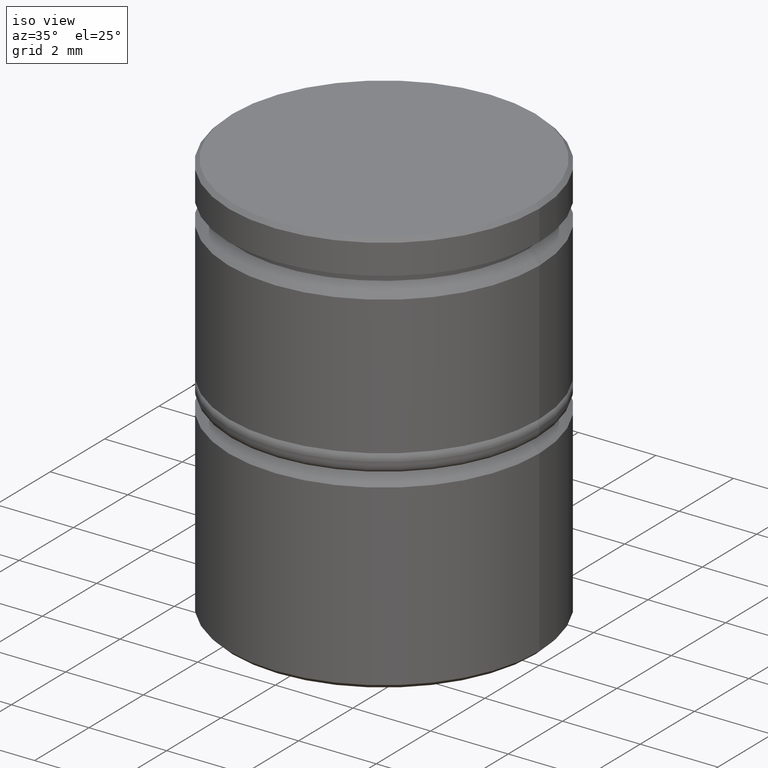
[diagram: clean part render]
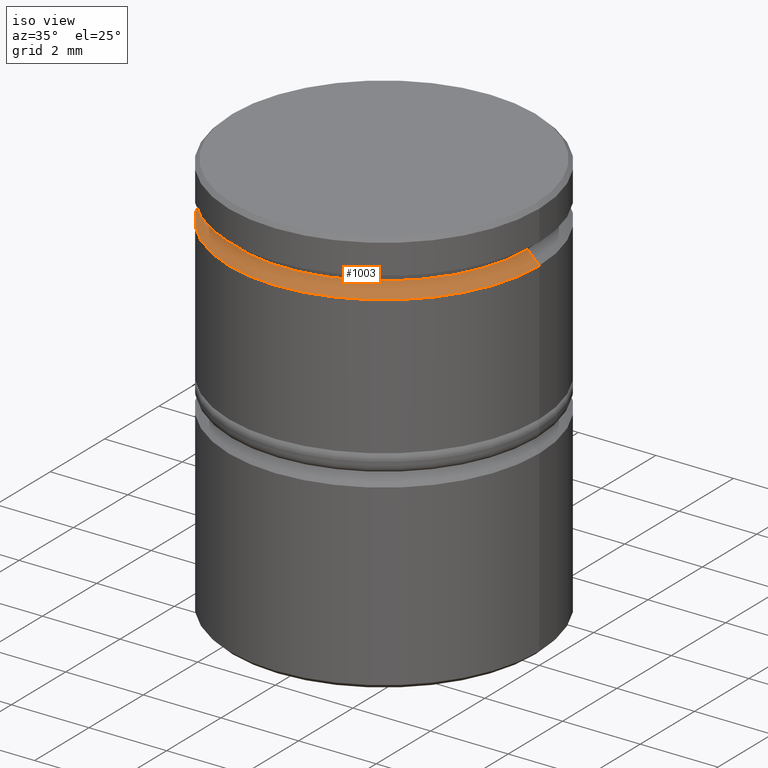
[diagram: same view with one face highlighted and labeled with its STEP entity id]
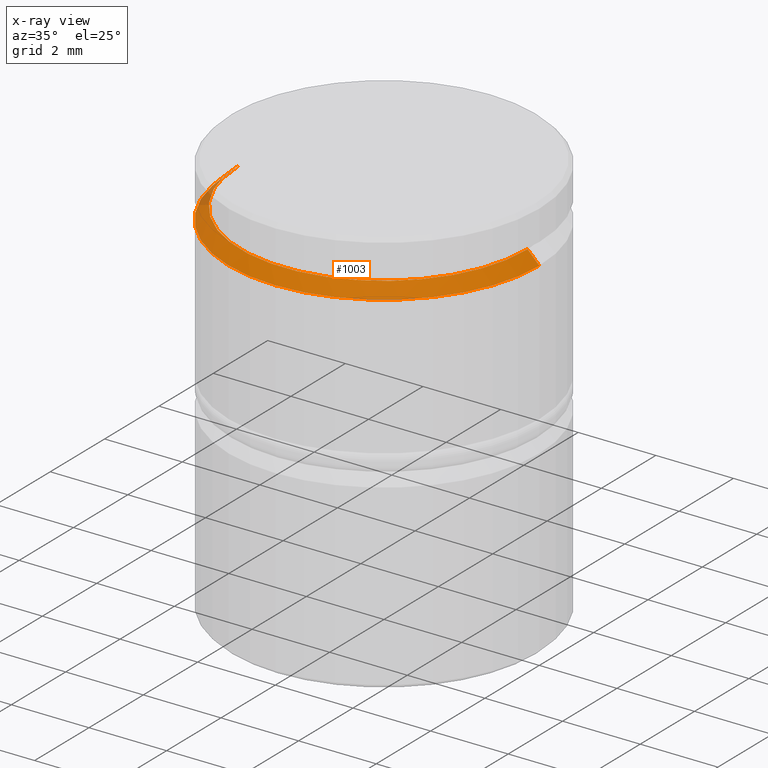
[diagram: x-ray of the same camera — body ghosted, the highlighted face saturated]
A machine part, iso view. The second image highlights one B-rep face of the part: STEP entity #1003.
The next image is the same camera in x-ray: the body ghosted, the highlighted face saturated — about 2% of this face is hidden behind the body in this view.
In plain terms, the highlighted conical surface has half-angle 45 deg.
Its self-contained STEP definition (entity closure, byte-faithful):
#59 = EDGE_LOOP ( 'NONE', ( #895, #339, #498, #673 ) ) ;
#76 = DIRECTION ( 'NONE',  ( 1.000000000000000000, 0.000000000000000000, 0.000000000000000000 ) ) ;
#115 = CARTESIAN_POINT ( 'NONE',  ( 3.700000000000000178, 0.000000000000000000, -1.125000000000000222 ) ) ;
#138 = VERTEX_POINT ( 'NONE', #449 ) ;
#225 = LINE ( 'NONE', #684, #329 ) ;
#321 = DIRECTION ( 'NONE',  ( 0.7071067811865474617, 8.659560562354932858E-17, -0.7071067811865474617 ) ) ;
#329 = VECTOR ( 'NONE', #957, 1000.000000000000114 ) ;
#339 = ORIENTED_EDGE ( 'NONE', *, *, #612, .F. ) ;
#348 = CONICAL_SURFACE ( 'NONE', #424, 3.699999999999998401, 0.7853981633974482790 ) ;
#351 = DIRECTION ( 'NONE',  ( -0.000000000000000000, -0.000000000000000000, 1.000000000000000000 ) ) ;
#377 = DIRECTION ( 'NONE',  ( 0.000000000000000000, 0.000000000000000000, -1.000000000000000000 ) ) ;
#384 = CIRCLE ( 'NONE', #1034, 4.000000000000000000 ) ;
#424 = AXIS2_PLACEMENT_3D ( 'NONE', #1068, #922, #1113 ) ;
#449 = CARTESIAN_POINT ( 'NONE',  ( -3.700000000000000178, 4.531193156845206201E-16, -1.125000000000000222 ) ) ;
#498 = ORIENTED_EDGE ( 'NONE', *, *, #512, .T. ) ;
#500 = LINE ( 'NONE', #781, #712 ) ;
#512 = EDGE_CURVE ( 'NONE', #138, #714, #225, .T. ) ;
#612 = EDGE_CURVE ( 'NONE', #138, #697, #674, .T. ) ;
#643 = CARTESIAN_POINT ( 'NONE',  ( 0.000000000000000000, 0.000000000000000000, -1.425000000000001821 ) ) ;
#652 = DIRECTION ( 'NONE',  ( 1.000000000000000000, 0.000000000000000000, 0.000000000000000000 ) ) ;
#673 = ORIENTED_EDGE ( 'NONE', *, *, #879, .F. ) ;
#674 = CIRCLE ( 'NONE', #1092, 3.700000000000000178 ) ;
#681 = VERTEX_POINT ( 'NONE', #1062 ) ;
#684 = CARTESIAN_POINT ( 'NONE',  ( -3.699999999999998401, 0.000000000000000000, -1.125000000000000222 ) ) ;
#697 = VERTEX_POINT ( 'NONE', #115 ) ;
#712 = VECTOR ( 'NONE', #321, 1000.000000000000114 ) ;
#714 = VERTEX_POINT ( 'NONE', #828 ) ;
#764 = EDGE_CURVE ( 'NONE', #697, #681, #500, .T. ) ;
#781 = CARTESIAN_POINT ( 'NONE',  ( 3.699999999999998401, 4.531193156845205215E-16, -1.125000000000000222 ) ) ;
#828 = CARTESIAN_POINT ( 'NONE',  ( -4.000000000000000000, 4.898587196589412829E-16, -1.425000000000001821 ) ) ;
#879 = EDGE_CURVE ( 'NONE', #681, #714, #384, .T. ) ;
#895 = ORIENTED_EDGE ( 'NONE', *, *, #764, .F. ) ;
#922 = DIRECTION ( 'NONE',  ( 0.000000000000000000, 0.000000000000000000, -1.000000000000000000 ) ) ;
#957 = DIRECTION ( 'NONE',  ( -0.7071067811865474617, 0.000000000000000000, -0.7071067811865474617 ) ) ;
#974 = CARTESIAN_POINT ( 'NONE',  ( 0.000000000000000000, 0.000000000000000000, -1.125000000000000222 ) ) ;
#1003 = ADVANCED_FACE ( 'NONE', ( #1163 ), #348, .T. ) ;
#1034 = AXIS2_PLACEMENT_3D ( 'NONE', #643, #377, #652 ) ;
#1062 = CARTESIAN_POINT ( 'NONE',  ( 4.000000000000000000, 0.000000000000000000, -1.425000000000001821 ) ) ;
#1068 = CARTESIAN_POINT ( 'NONE',  ( 0.000000000000000000, 0.000000000000000000, -1.125000000000000222 ) ) ;
#1092 = AXIS2_PLACEMENT_3D ( 'NONE', #974, #351, #76 ) ;
#1113 = DIRECTION ( 'NONE',  ( -1.000000000000000000, 0.000000000000000000, 0.000000000000000000 ) ) ;
#1163 = FACE_OUTER_BOUND ( 'NONE', #59, .T. ) ;